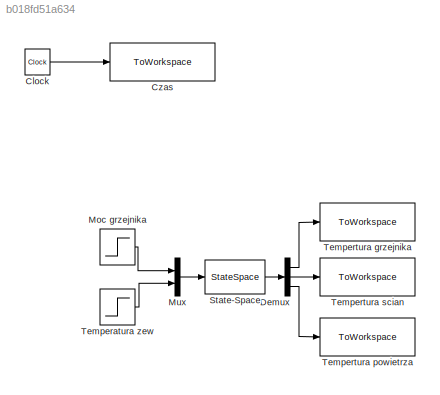
MODEL slx_b018fd51a634
KIND model
CONFIG AbsTol = auto
CONFIG FixedStep = auto
CONFIG MaxStep = tmax
CONFIG MinStep = auto
CONFIG RelTol = 1e-3
CONFIG SampleTimeConstraint = Unconstrained
CONFIG Solver = ode45
CONFIG SolverMode = Auto
CONFIG SolverName = ode45
CONFIG StartTime = 0.0
CONFIG StopTime = czas_sym
BLOCK [Clock] Clock
BLOCK [ToWorkspace] Czas
  MaxDataPoints = inf
  Ports = [1]
  SampleTime = -1
  Save2DSignal = 2-D array (concatenate along first dimension)
  VariableName = t
BLOCK [Demux] Demux
  DisplayOption = bar
  Outputs = 3
  Ports = [1, 3]
BLOCK [Step] Moc grzejnika
  After = Qg0 + dQg
  Before = Qg0
  SampleTime = 0
  Time = t0
BLOCK [Mux] Mux
  DisplayOption = bar
  Inputs = 2
  Ports = [2, 1]
BLOCK [StateSpace] State-Space
  A = A
  B = B
  C = C
  D = D
  Ports = [1, 1]
  X0 = x0
BLOCK [Step] Temperatura zew
  After = Tzew0+ dTzew
  Before = Tzew0
  SampleTime = 0
  Time = t0
BLOCK [ToWorkspace] Tempertura grzejnika
  MaxDataPoints = inf
  Ports = [1]
  SampleTime = -1
  Save2DSignal = 2-D array (concatenate along first dimension)
  VariableName = Tg
BLOCK [ToWorkspace] Tempertura powietrza
  MaxDataPoints = inf
  Ports = [1]
  SampleTime = -1
  Save2DSignal = 2-D array (concatenate along first dimension)
  VariableName = Twew
BLOCK [ToWorkspace] Tempertura scian
  MaxDataPoints = inf
  Ports = [1]
  SampleTime = -1
  Save2DSignal = 2-D array (concatenate along first dimension)
  VariableName = Ts
LINE Clock:1 -> Czas:1
LINE Demux:1 -> Tempertura grzejnika:1
LINE Demux:2 -> Tempertura scian:1
LINE Demux:3 -> Tempertura powietrza:1
LINE Moc grzejnika:1 -> Mux:1
LINE Mux:1 -> State-Space:1
LINE State-Space:1 -> Demux:1
LINE Temperatura zew:1 -> Mux:2
